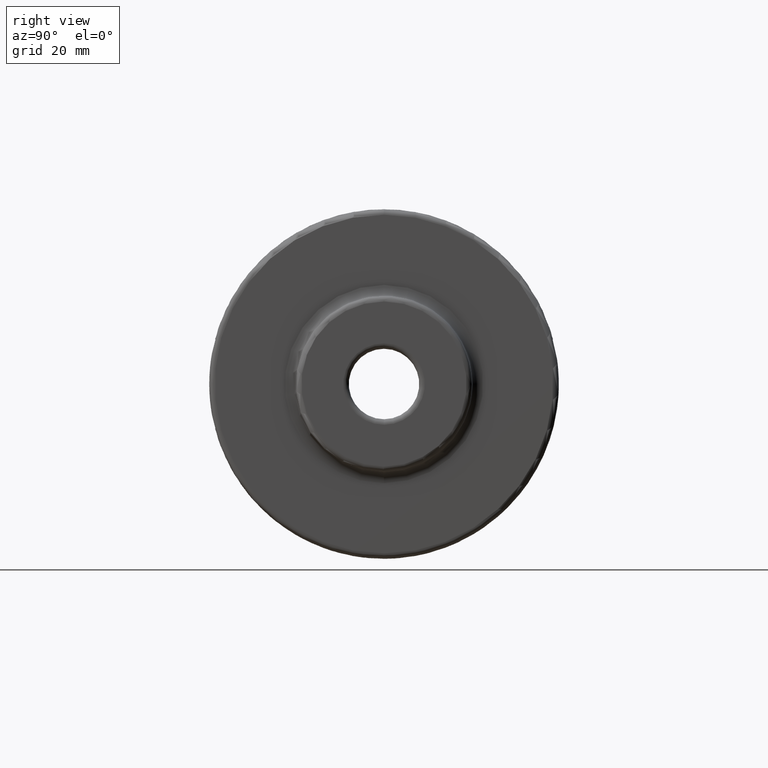
[diagram: clean part render]
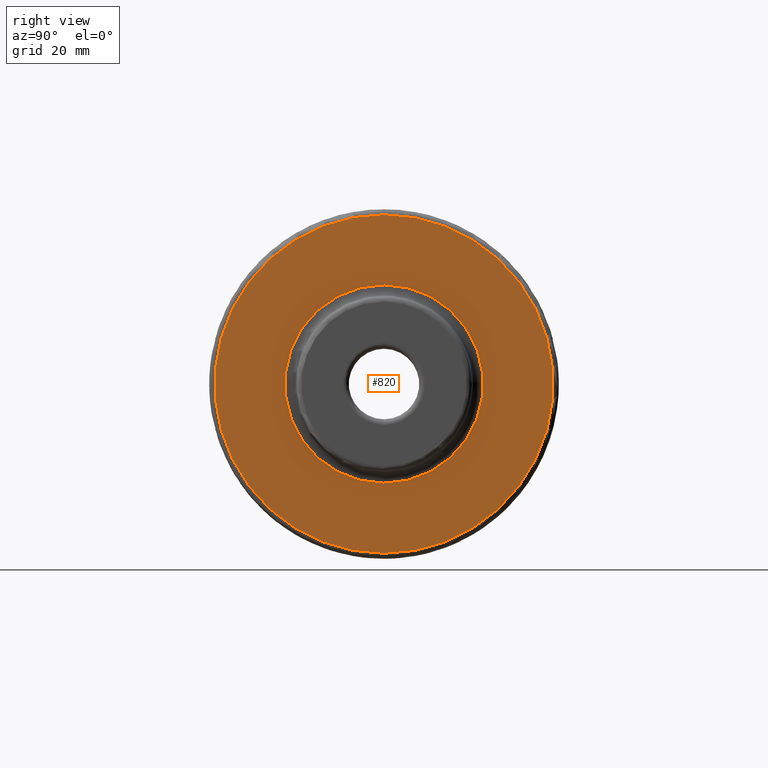
[diagram: same view with one face highlighted and labeled with its STEP entity id]
A machine part, right view. The second image highlights one B-rep face of the part: STEP entity #820.
In plain terms, the highlighted planar face has unit normal (1, 0, 0).
Its self-contained STEP definition (entity closure, byte-faithful):
#56=FACE_BOUND('',#144,.T.);
#65=PLANE('',#912);
#90=FACE_OUTER_BOUND('',#143,.T.);
#143=EDGE_LOOP('',(#590));
#144=EDGE_LOOP('',(#591));
#294=CIRCLE('',#911,17.875);
#295=CIRCLE('',#913,30.5);
#353=VERTEX_POINT('',#1353);
#354=VERTEX_POINT('',#1357);
#443=EDGE_CURVE('',#353,#353,#294,.T.);
#444=EDGE_CURVE('',#354,#354,#295,.T.);
#590=ORIENTED_EDGE('',*,*,#444,.T.);
#591=ORIENTED_EDGE('',*,*,#443,.F.);
#820=ADVANCED_FACE('',(#90,#56),#65,.T.);
#911=AXIS2_PLACEMENT_3D('',#1355,#1057,#1058);
#912=AXIS2_PLACEMENT_3D('',#1356,#1059,#1060);
#913=AXIS2_PLACEMENT_3D('',#1358,#1061,#1062);
#1057=DIRECTION('center_axis',(1.,0.,0.));
#1058=DIRECTION('ref_axis',(0.,1.,1.22464679914735E-16));
#1059=DIRECTION('center_axis',(1.,0.,0.));
#1060=DIRECTION('ref_axis',(0.,0.,-1.));
#1061=DIRECTION('center_axis',(1.,0.,0.));
#1062=DIRECTION('ref_axis',(0.,0.,-1.));
#1353=CARTESIAN_POINT('',(27.,-2.18905615347589E-15,-17.875));
#1355=CARTESIAN_POINT('Origin',(27.,0.,0.));
#1356=CARTESIAN_POINT('Origin',(27.,0.,0.));
#1357=CARTESIAN_POINT('',(27.,-3.73517273739943E-15,30.5));
#1358=CARTESIAN_POINT('Origin',(27.,0.,0.));